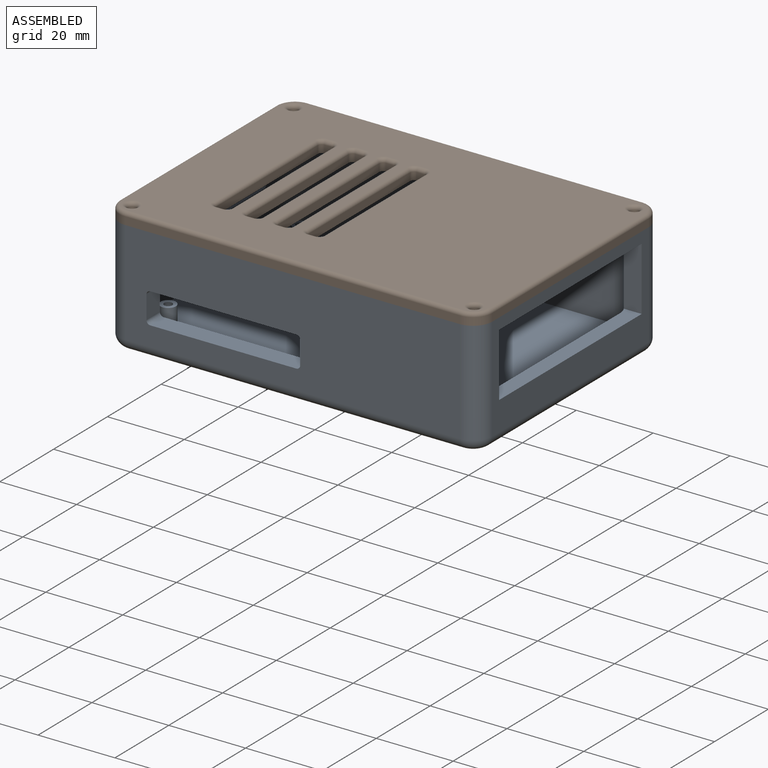
[diagram: assembled view]
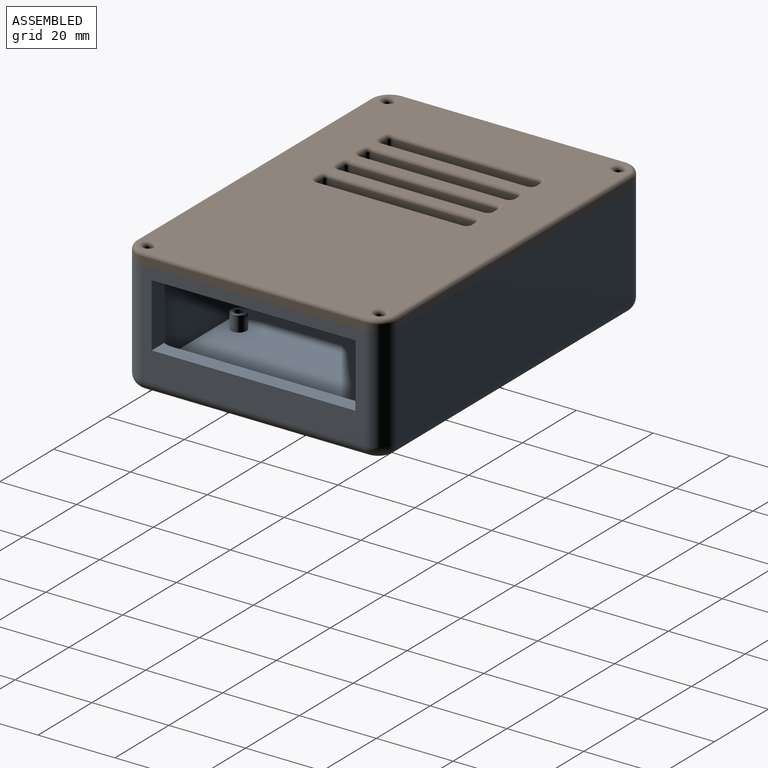
[diagram: assembled view, second angle]
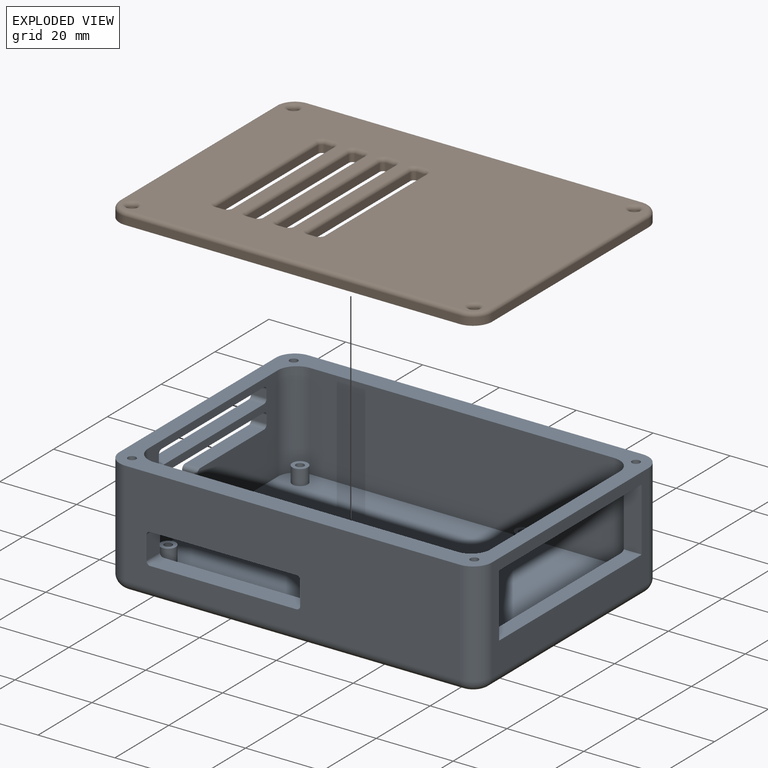
[diagram: exploded view]
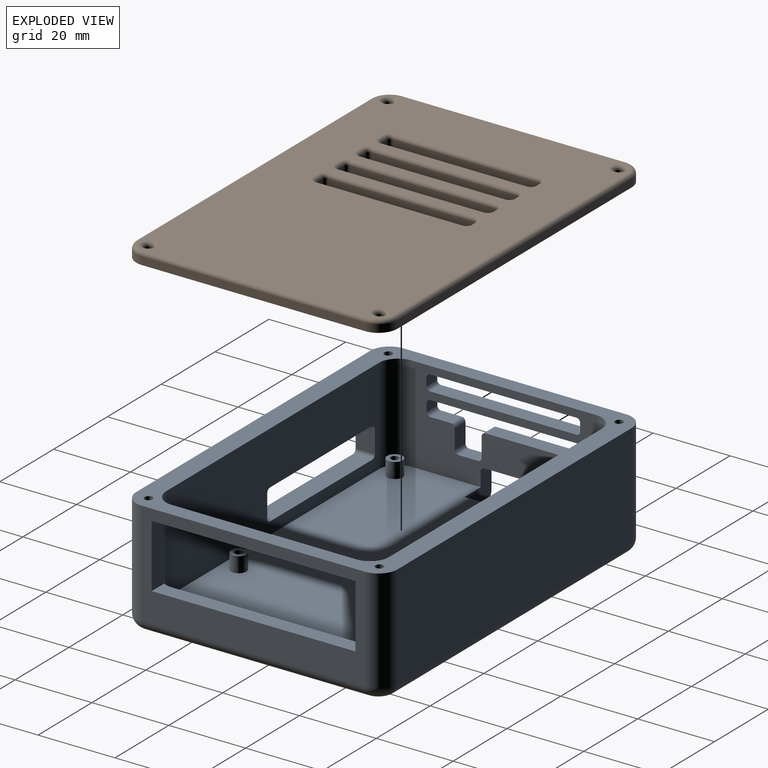
[diagram: exploded view, second angle]
FCSTD DOCUMENT  (FreeCAD 1.0R39109 (Git))
Label: Pi-Case
License: All rights reserved
LicenseURL: https://en.wikipedia.org/wiki/All_rights_reserved
objects: Sketcher::SketchObject×13, PartDesign::Pocket×5, PartDesign::Pad×4, PartDesign::Hole×3, PartDesign::Fillet×2, PartDesign::Body×2, Assembly::JointGroup×1, Assembly::AssemblyObject×1
note: 70 computed .brp shape members not serialized (recipe doc carries the construction recipe); baked Part::Feature solids carry a one-line shape summary decoded from their .brp

FEATURE [Assembly::JointGroup] Joints
FEATURE [Sketcher::SketchObject] Sketch
  ArcFitTolerance = 1e-06
  AttachmentSupport = -> [XY_Plane002]
  FullyConstrained = true
  MakeInternals = false
  MapMode = 5
  sketch-geometry (10):
    g0: LineSegment StartX=-43.5 StartY=-34 StartZ=0 EndX=43.5 EndY=-34 EndZ=0
    g1: LineSegment StartX=48.5 StartY=-29 StartZ=0 EndX=48.5 EndY=29 EndZ=0
    g2: LineSegment StartX=43.5 StartY=34 StartZ=0 EndX=-43.5 EndY=34 EndZ=0
    g3: LineSegment StartX=-48.5 StartY=29 StartZ=0 EndX=-48.5 EndY=-29 EndZ=0
    g4: ArcOfCircle CenterX=-43.5 CenterY=-29 CenterZ=0 NormalX=0 NormalY=0 NormalZ=1 AngleXU=0 Radius=5 StartAngle=3.14159 EndAngle=4.71239
    g5: ArcOfCircle CenterX=43.5 CenterY=-29 CenterZ=0 NormalX=0 NormalY=0 NormalZ=1 AngleXU=0 Radius=5 StartAngle=4.71239 EndAngle=6.28319
    g6: ArcOfCircle CenterX=43.5 CenterY=29 CenterZ=0 NormalX=0 NormalY=0 NormalZ=1 AngleXU=0 Radius=5 StartAngle=4.3e-15 EndAngle=1.5708
    g7: ArcOfCircle CenterX=-43.5 CenterY=29 CenterZ=0 NormalX=0 NormalY=0 NormalZ=1 AngleXU=0 Radius=5 StartAngle=1.5708 EndAngle=3.14159
    g8: GeomPoint [constr] X=48.5 Y=34 Z=0
    g9: GeomPoint [constr] X=0 Y=0 Z=0
  constraints (22):
    c: Tangent(g0,g4) = -1.5708
    c: Tangent(g0,g5) = -1.5708
    c: Tangent(g1,g5) = -1.5708
    c: Tangent(g1,g6) = -1.5708
    c: Tangent(g2,g6) = -1.5708
    c: Tangent(g2,g7) = -1.5708
    c: Tangent(g3,g7) = -1.5708
    c: Tangent(g3,g4) = -1.5708
    c: Horizontal(g0)
    c: Horizontal(g2)
    c: Vertical(g1)
    c: Vertical(g3)
    c: Equal(g4,g5)
    c: Equal(g5,g6)
    c: Equal(g6,g7)
    c: Symmetric(g2,g0,g9)
    c: PointOnObject(g8,g1)
    c: PointOnObject(g8,g2)
    c: Distance(g1,g3) = 97
    c: Distance(g0,g2) = 68
    c: Radius(g5) = 5
    c: Coincident(g9,g-1)
FEATURE [PartDesign::Pad] Pad  label="Base"
  Direction = (0,0,1)
  Length = 5
  Length2 = 10
  Profile = -> Sketch
  ReferenceAxis = -> Sketch [N_Axis]
  Refine = true
  Suppressed = false
  Type = 0
FEATURE [PartDesign::Fillet] Fillet
  Base = -> Pad [Face9]
  BaseFeature = -> Pad
  Radius = 3
  Refine = true
  SupportTransform = false
  Suppressed = false
  UseAllEdges = false
FEATURE [Sketcher::SketchObject] Sketch001
  ArcFitTolerance = 1e-06
  AttachmentSupport = -> [Fillet]
  FullyConstrained = false
  MakeInternals = false
  MapMode = 5
  Placement = pos=(0,0,5) rot=(0,0,1;0rad)
  sketch-geometry (4):
    g0: Circle CenterX=18.9912 CenterY=24.5 CenterZ=0 NormalX=0 NormalY=0 NormalZ=1 AngleXU=0 Radius=2
    g1: Circle CenterX=18.9912 CenterY=-24.5 CenterZ=0 NormalX=0 NormalY=0 NormalZ=1 AngleXU=0 Radius=2
    g2: Circle CenterX=-39.0088 CenterY=-24.5 CenterZ=0 NormalX=0 NormalY=0 NormalZ=1 AngleXU=0 Radius=2
    g3: Circle CenterX=-39.0088 CenterY=24.5 CenterZ=0 NormalX=0 NormalY=0 NormalZ=1 AngleXU=0 Radius=2
  constraints (9):
    c: Diameter(g0) = 4
    c: Diameter(g1) = 4
    c: Diameter(g2) = 4
    c: Diameter(g3) = 4
    c: Symmetric(g3,g2,g-1)
    c: Symmetric(g1,g0,g-1)
    c: DistanceX(g3,g0) = 58
    c: DistanceY(g1,g0) = 49
    c: DistanceY(g2,g3) = 49
FEATURE [Sketcher::SketchObject] Sketch002
  ArcFitTolerance = 1e-06
  AttachmentSupport = -> [Fillet]
  FullyConstrained = true
  MakeInternals = false
  MapMode = 5
  Placement = pos=(0,0,5) rot=(0,0,1;0rad)
  sketch-geometry (20):
    g0: LineSegment StartX=-43.5 StartY=-34 StartZ=0 EndX=43.5 EndY=-34 EndZ=0
    g1: LineSegment StartX=48.5 StartY=-29 StartZ=0 EndX=48.5 EndY=29 EndZ=0
    g2: LineSegment StartX=43.5 StartY=34 StartZ=0 EndX=-43.5 EndY=34 EndZ=0
    g3: LineSegment StartX=-48.5 StartY=29 StartZ=0 EndX=-48.5 EndY=-29 EndZ=0
    g4: ArcOfCircle CenterX=-43.5 CenterY=-29 CenterZ=0 NormalX=0 NormalY=0 NormalZ=1 AngleXU=0 Radius=5 StartAngle=3.14159 EndAngle=4.71239
    g5: ArcOfCircle CenterX=43.5 CenterY=-29 CenterZ=0 NormalX=0 NormalY=0 NormalZ=1 AngleXU=0 Radius=5 StartAngle=4.71239 EndAngle=6.28319
    g6: ArcOfCircle CenterX=43.5 CenterY=29 CenterZ=0 NormalX=0 NormalY=0 NormalZ=1 AngleXU=0 Radius=5 StartAngle=0 EndAngle=1.5708
    g7: ArcOfCircle CenterX=-43.5 CenterY=29 CenterZ=0 NormalX=0 NormalY=0 NormalZ=1 AngleXU=0 Radius=5 StartAngle=1.5708 EndAngle=3.14159
    g8: GeomPoint [constr] X=48.5 Y=34 Z=0
    g9: GeomPoint [constr] X=0 Y=0 Z=0
    g10: LineSegment StartX=-39.5 StartY=-29 StartZ=0 EndX=39.5 EndY=-29 EndZ=0
    g11: LineSegment StartX=44.5 StartY=-24 StartZ=0 EndX=44.5 EndY=24 EndZ=0
    g12: LineSegment StartX=39.5 StartY=29 StartZ=0 EndX=-39.5 EndY=29 EndZ=0
    g13: LineSegment StartX=-44.5 StartY=24 StartZ=0 EndX=-44.5 EndY=-24 EndZ=0
    g14: ArcOfCircle CenterX=-39.5 CenterY=-24 CenterZ=0 NormalX=0 NormalY=0 NormalZ=1 AngleXU=0 Radius=5 StartAngle=3.14159 EndAngle=4.71239
    g15: ArcOfCircle CenterX=39.5 CenterY=-24 CenterZ=0 NormalX=0 NormalY=0 NormalZ=1 AngleXU=0 Radius=5 StartAngle=4.71239 EndAngle=6.28319
    g16: ArcOfCircle CenterX=39.5 CenterY=24 CenterZ=0 NormalX=0 NormalY=0 NormalZ=1 AngleXU=0 Radius=5 StartAngle=-9e-16 EndAngle=1.5708
    g17: ArcOfCircle CenterX=-39.5 CenterY=24 CenterZ=0 NormalX=0 NormalY=0 NormalZ=1 AngleXU=0 Radius=5 StartAngle=1.5708 EndAngle=3.14159
    g18: GeomPoint [constr] X=44.5 Y=29 Z=0
    g19: GeomPoint [constr] X=0 Y=0 Z=0
  constraints (44):
    c: Tangent(g0,g4) = -1.5708
    c: Tangent(g0,g5) = -1.5708
    c: Tangent(g1,g5) = -1.5708
    c: Tangent(g1,g6) = -1.5708
    c: Tangent(g2,g6) = -1.5708
    c: Tangent(g2,g7) = -1.5708
    c: Tangent(g3,g7) = -1.5708
    c: Tangent(g3,g4) = -1.5708
    c: Horizontal(g0)
    c: Horizontal(g2)
    c: Vertical(g1)
    c: Vertical(g3)
    c: Equal(g4,g5)
    c: Equal(g5,g6)
    c: Equal(g6,g7)
    c: Symmetric(g2,g0,g9)
    c: PointOnObject(g8,g1)
    c: PointOnObject(g8,g2)
    c: Distance(g1,g3) = 97
    c: Distance(g0,g2) = 68
    c: Radius(g5) = 5
    c: Coincident(g9,g-1)
    c: Tangent(g10,g14) = -1.5708
    c: Tangent(g10,g15) = -1.5708
    c: Tangent(g11,g15) = -1.5708
    c: Tangent(g11,g16) = -1.5708
    c: Tangent(g12,g16) = -1.5708
    c: Tangent(g12,g17) = -1.5708
    c: Tangent(g13,g17) = -1.5708
    c: Tangent(g13,g14) = -1.5708
    c: Horizontal(g10)
    c: Horizontal(g12)
    c: Vertical(g11)
    c: Vertical(g13)
    c: Equal(g14,g15)
    c: Equal(g15,g16)
    c: Equal(g16,g17)
    c: Symmetric(g12,g10,g19)
    c: PointOnObject(g18,g11)
    c: PointOnObject(g18,g12)
    c: Distance(g11,g13) = 89
    c: Distance(g10,g12) = 58
    c: Radius(g15) = 5
    c: Coincident(g19,g9)
FEATURE [PartDesign::Pad] Pad001  label="Walls"
  BaseFeature = -> Fillet
  Direction = (0,0,1)
  Length = 25
  Length2 = 10
  Profile = -> Sketch002
  ReferenceAxis = -> Sketch002 [N_Axis]
  Refine = true
  Suppressed = false
  Type = 0
FEATURE [Sketcher::SketchObject] Sketch003
  ArcFitTolerance = 1e-06
  AttachmentSupport = -> [Pad001]
  FullyConstrained = true
  MakeInternals = false
  MapMode = 5
  Placement = pos=(48.5,0,0) rot=(0.57735,0.57735,0.57735;2.0944rad)
  sketch-geometry (5):
    g0: LineSegment StartX=-26.5 StartY=10.6 StartZ=0 EndX=26.5 EndY=10.6 EndZ=0
    g1: LineSegment StartX=26.5 StartY=10.6 StartZ=0 EndX=26.5 EndY=27.1 EndZ=0
    g2: LineSegment StartX=26.5 StartY=27.1 StartZ=0 EndX=-26.5 EndY=27.1 EndZ=0
    g3: LineSegment StartX=-26.5 StartY=27.1 StartZ=0 EndX=-26.5 EndY=10.6 EndZ=0
    g4: GeomPoint [constr] X=0 Y=18.85 Z=0
  constraints (13):
    c: Coincident(g0,g1)
    c: Coincident(g1,g2)
    c: Coincident(g2,g3)
    c: Coincident(g3,g0)
    c: Horizontal(g0)
    c: Horizontal(g2)
    c: Vertical(g1)
    c: Vertical(g3)
    c: Symmetric(g2,g0,g4)
    c: Distance(g1,g3) = 53
    c: Distance(g0,g2) = 16.5
    c: PointOnObject(g4,g-2)
    c: DistanceY(g-1,g4) = 18.85
FEATURE [PartDesign::Pocket] Pocket  label="Back Ports"
  BaseFeature = -> Pad001
  Direction = (-1,0,0)
  Length = 5
  Length2 = 5
  Profile = -> Sketch003
  ReferenceAxis = -> Sketch003 [N_Axis]
  Refine = true
  Suppressed = false
  Type = 0
FEATURE [PartDesign::Pad] Pad002  label="Stilts"
  BaseFeature = -> Pocket
  Direction = (0,0,1)
  Length = 4
  Length2 = 10
  Profile = -> Sketch001
  ReferenceAxis = -> Sketch001 [N_Axis]
  Refine = true
  Suppressed = false
  Type = 0
FEATURE [Sketcher::SketchObject] Sketch004
  ArcFitTolerance = 1e-06
  AttachmentSupport = -> [Pad002]
  ExternalGeometry = -> [Pad002]
  FullyConstrained = true
  MakeInternals = false
  MapMode = 5
  Placement = pos=(0,0,9) rot=(0,0,1;0rad)
  sketch-geometry (4):
    g0: Circle CenterX=-39.0088 CenterY=24.5 CenterZ=0 NormalX=0 NormalY=0 NormalZ=1 AngleXU=0 Radius=0.75
    g1: Circle CenterX=18.9912 CenterY=24.5 CenterZ=0 NormalX=0 NormalY=0 NormalZ=1 AngleXU=0 Radius=0.75
    g2: Circle CenterX=18.9912 CenterY=-24.5 CenterZ=0 NormalX=0 NormalY=0 NormalZ=1 AngleXU=0 Radius=0.75
    g3: Circle CenterX=-39.0088 CenterY=-24.5 CenterZ=0 NormalX=0 NormalY=0 NormalZ=1 AngleXU=0 Radius=0.75
  constraints (8):
    c: Diameter(g0) = 1.5
    c: Coincident(g0,g-3)
    c: Diameter(g1) = 1.5
    c: Coincident(g1,g-4)
    c: Diameter(g2) = 1.5
    c: Coincident(g2,g-5)
    c: Diameter(g3) = 1.5
    c: Coincident(g3,g-6)
FEATURE [PartDesign::Hole] Hole  label="Board Holes"
  BaseFeature = -> Pad002
  CustomThreadClearance = 0
  Depth = 6
  DepthType = 0
  Diameter = 2.1
  DrillForDepth = false
  DrillPoint = 1
  DrillPointAngle = 118
  HoleCutCountersinkAngle = 90
  HoleCutCustomValues = false
  HoleCutDepth = 0
  HoleCutDiameter = 6.1
  HoleCutType = 0
  ModelThread = false
  Profile = -> Sketch004
  Refine = true
  Suppressed = false
  Tapered = false
  TaperedAngle = 90
  ThreadClass = 0
  ThreadDepth = 6
  ThreadDepthType = 0
  ThreadDirection = 0
  ThreadFit = 0
  ThreadSize = 0
  ThreadType = 0
  Threaded = false
  UseCustomThreadClearance = false
FEATURE [Sketcher::SketchObject] Sketch005
  ArcFitTolerance = 1e-06
  AttachmentSupport = -> [Hole]
  ExternalGeometry = -> [Hole]
  FullyConstrained = false
  MakeInternals = false
  MapMode = 5
  Placement = pos=(0,0,30) rot=(0,0,1;0rad)
  sketch-geometry (4):
    g0: Circle CenterX=-44.5355 CenterY=-30.0355 CenterZ=0 NormalX=0 NormalY=0 NormalZ=1 AngleXU=0 Radius=1.05
    g1: Circle CenterX=44.5345 CenterY=-30.0345 CenterZ=0 NormalX=0 NormalY=0 NormalZ=1 AngleXU=0 Radius=1.05
    g2: Circle CenterX=44.5355 CenterY=30.0355 CenterZ=0 NormalX=0 NormalY=0 NormalZ=1 AngleXU=0 Radius=1.05
    g3: Circle CenterX=-44.5355 CenterY=30.0355 CenterZ=0 NormalX=0 NormalY=0 NormalZ=1 AngleXU=0 Radius=1.05
  constraints (6):
    c: Diameter(g0) = 2.1
    c: Diameter(g1) = 2.1
    c: Diameter(g2) = 2.1
    c: Diameter(g3) = 2.1
    c: DistanceX(g0,g1) = 89.07
    c: DistanceY(g1,g2) = 60.07
FEATURE [Sketcher::SketchObject] Sketch006
  ArcFitTolerance = 1e-06
  AttachmentSupport = -> [Hole]
  FullyConstrained = false
  MakeInternals = false
  MapMode = 5
  Placement = pos=(-48.5,0,0) rot=(0.57735,-0.57735,-0.57735;2.0944rad)
  sketch-geometry (11):
    g0: LineSegment StartX=-5 StartY=-0.312917 StartZ=0 EndX=5 EndY=-0.312917 EndZ=0
    g1: LineSegment StartX=6 StartY=0.687083 StartZ=0 EndX=6 EndY=8.68708 EndZ=0
    g2: LineSegment StartX=5 StartY=9.68708 StartZ=0 EndX=-5 EndY=9.68708 EndZ=0
    g3: LineSegment StartX=-6 StartY=8.68708 StartZ=0 EndX=-6 EndY=0.687083 EndZ=0
    g4: ArcOfCircle CenterX=-5 CenterY=0.687083 CenterZ=0 NormalX=0 NormalY=0 NormalZ=1 AngleXU=0 Radius=1 StartAngle=3.14159 EndAngle=4.71239
    g5: ArcOfCircle CenterX=5 CenterY=0.687083 CenterZ=0 NormalX=0 NormalY=0 NormalZ=1 AngleXU=0 Radius=1 StartAngle=4.71239 EndAngle=6.28319
    g6: ArcOfCircle CenterX=5 CenterY=8.68708 CenterZ=0 NormalX=0 NormalY=0 NormalZ=1 AngleXU=0 Radius=1 StartAngle=1e-16 EndAngle=1.5708
    g7: ArcOfCircle CenterX=-5 CenterY=8.68708 CenterZ=0 NormalX=0 NormalY=0 NormalZ=1 AngleXU=0 Radius=1 StartAngle=1.5708 EndAngle=3.14159
    g8: GeomPoint [constr] X=6 Y=9.68708 Z=0
    g9: GeomPoint [constr] X=0 Y=5.00565 Z=0
    g10: GeomPoint [constr] X=5 Y=9.68708 Z=0
  constraints (22):
    c: Tangent(g0,g4) = -1.5708
    c: Tangent(g0,g5) = -1.5708
    c: Tangent(g1,g5) = -1.5708
    c: Tangent(g1,g6) = -1.5708
    c: Tangent(g2,g6) = -1.5708
    c: Tangent(g2,g7) = -1.5708
    c: Tangent(g3,g7) = -1.5708
    c: Tangent(g3,g4) = -1.5708
    c: Horizontal(g0)
    c: Horizontal(g2)
    c: Vertical(g1)
    c: Vertical(g3)
    c: Equal(g5,g6)
    c: Equal(g6,g7)
    c: PointOnObject(g8,g1)
    c: PointOnObject(g8,g2)
    c: Distance(g1,g3) = 12
    c: Distance(g0,g2) = 10
    c: Radius(g5) = 1
    c: PointOnObject(g9,g-2)
    c: Symmetric(g5,g4,g-2)
    c: Coincident(g10,g2)
FEATURE [PartDesign::Pocket] Pocket001  label="SD Card Pocket"
  BaseFeature = -> Hole
  Direction = (1,0,0)
  Length = 10
  Length2 = 5
  Profile = -> Sketch006
  ReferenceAxis = -> Sketch006 [N_Axis]
  Refine = true
  Suppressed = false
  Type = 0
FEATURE [Sketcher::SketchObject] Sketch007
  ArcFitTolerance = 1e-06
  AttachmentSupport = -> [Pocket001]
  ExternalGeometry = -> [Pocket001]
  FullyConstrained = false
  MakeInternals = false
  MapMode = 5
  Placement = pos=(-48.5,0,0) rot=(0.57735,-0.57735,-0.57735;2.0944rad)
  sketch-geometry (37):
    g0: LineSegment StartX=20.0788 StartY=18.9948 StartZ=0 EndX=20.0788 EndY=21 EndZ=0
    g1: LineSegment StartX=19.0788 StartY=22 StartZ=0 EndX=-18.9212 EndY=22 EndZ=0
    g2: LineSegment StartX=-19.9212 StartY=21 StartZ=0 EndX=-19.9212 EndY=18.9912 EndZ=0
    g3: ArcOfCircle CenterX=-18.9212 CenterY=18.9912 CenterZ=0 NormalX=0 NormalY=0 NormalZ=1 AngleXU=0 Radius=1 StartAngle=3.14159 EndAngle=4.55954
    g4: ArcOfCircle CenterX=19.0788 CenterY=18.9948 CenterZ=0 NormalX=0 NormalY=0 NormalZ=1 AngleXU=0 Radius=1 StartAngle=4.7111 EndAngle=6.28319
    g5: ArcOfCircle CenterX=19.0788 CenterY=21 CenterZ=0 NormalX=0 NormalY=0 NormalZ=1 AngleXU=0 Radius=1 StartAngle=1.3e-15 EndAngle=1.5708
    g6: ArcOfCircle CenterX=-18.9212 CenterY=21 CenterZ=0 NormalX=0 NormalY=0 NormalZ=1 AngleXU=0 Radius=1 StartAngle=1.5708 EndAngle=3.14159
    g7: GeomPoint [constr] X=20.0788 Y=22 Z=0
    g8: GeomPoint [constr] X=0.00265967 Y=20.0014 Z=0
    g9: LineSegment StartX=-18.8903 StartY=24 StartZ=0 EndX=19.1097 EndY=24 EndZ=0
    g10: LineSegment StartX=20.1097 StartY=25 StartZ=0 EndX=20.1097 EndY=27 EndZ=0
    g11: LineSegment StartX=19.1097 StartY=28 StartZ=0 EndX=-18.8903 EndY=28 EndZ=0
    g12: LineSegment StartX=-19.8903 StartY=27 StartZ=0 EndX=-19.8903 EndY=25 EndZ=0
    g13: ArcOfCircle CenterX=-18.8903 CenterY=25 CenterZ=0 NormalX=0 NormalY=0 NormalZ=1 AngleXU=0 Radius=1 StartAngle=3.14159 EndAngle=4.71239
    g14: ArcOfCircle CenterX=19.1097 CenterY=25 CenterZ=0 NormalX=0 NormalY=0 NormalZ=1 AngleXU=0 Radius=1 StartAngle=4.71239 EndAngle=6.28319
    g15: ArcOfCircle CenterX=19.1097 CenterY=27 CenterZ=0 NormalX=0 NormalY=0 NormalZ=1 AngleXU=0 Radius=1 StartAngle=1.1e-15 EndAngle=1.5708
    g16: ArcOfCircle CenterX=-18.8903 CenterY=27 CenterZ=0 NormalX=0 NormalY=0 NormalZ=1 AngleXU=0 Radius=1 StartAngle=1.5708 EndAngle=3.14159
    g17: GeomPoint [constr] X=20.1097 Y=28 Z=0
    g18: GeomPoint [constr] X=0.109708 Y=26 Z=0
    g19: GeomPoint X=24.15 Y=9 Z=0
    g20: LineSegment StartX=19.0775 StartY=17.9948 StartZ=0 EndX=13.7513 EndY=18.0016 EndZ=0
    g21: LineSegment StartX=12.75 StartY=17.0016 StartZ=0 EndX=12.75 EndY=12.0029 EndZ=0
    g22: LineSegment StartX=11.75 StartY=11.0029 StartZ=0 EndX=6.75 EndY=11.0029 EndZ=0
    g23: LineSegment StartX=5.75 StartY=12.0029 StartZ=0 EndX=5.75 EndY=17.0029 EndZ=0
    g24: LineSegment StartX=4.75 StartY=18.0029 StartZ=0 EndX=-19.0735 EndY=18.0029 EndZ=0
    g25: GeomPoint X=9.25 Y=11.0029 Z=0
    g26: GeomPoint X=9.25 Y=18.0029 Z=0
    g27: ArcOfCircle CenterX=6.75 CenterY=12.0029 CenterZ=0 NormalX=0 NormalY=0 NormalZ=1 AngleXU=0 Radius=1 StartAngle=3.14159 EndAngle=4.71239
    g28: GeomPoint [constr] X=5.75 Y=11.0029 Z=0
    g29: ArcOfCircle CenterX=11.75 CenterY=12.0029 CenterZ=0 NormalX=0 NormalY=0 NormalZ=1 AngleXU=0 Radius=1 StartAngle=4.71239 EndAngle=6.28319
    g30: GeomPoint [constr] X=12.75 Y=11.0029 Z=0
    g31: GeomPoint X=9.25 Y=9 Z=0
    g32: ArcOfCircle CenterX=13.75 CenterY=17.0016 CenterZ=0 NormalX=0 NormalY=0 NormalZ=1 AngleXU=0 Radius=1 StartAngle=1.56951 EndAngle=3.14159
    g33: GeomPoint [constr] X=12.75 Y=18.0029 Z=0
    g34: ArcOfCircle CenterX=4.75 CenterY=17.0029 CenterZ=0 NormalX=0 NormalY=0 NormalZ=1 AngleXU=0 Radius=1 StartAngle=5e-16 EndAngle=1.5708
    g35: GeomPoint [constr] X=5.75 Y=18.0029 Z=0
    g36: GeomPoint X=0 Y=30 Z=0
  constraints (78):
    c: Tangent(g0,g4) = -1.5708
    c: Tangent(g0,g5) = -1.5708
    c: Tangent(g1,g5) = -1.5708
    c: Tangent(g1,g6) = -1.5708
    c: Tangent(g2,g6) = -1.5708
    c: Tangent(g2,g3) = -1.5708
    c: Horizontal(g1)
    c: Vertical(g0)
    c: Vertical(g2)
    c: Equal(g3,g4)
    c: Equal(g4,g5)
    c: Equal(g5,g6)
    c: Symmetric(g1,g3,g8)
    c: PointOnObject(g7,g0)
    c: PointOnObject(g7,g1)
    c: Distance(g0,g2) = 40
    c: Distance(g3,g1) = 4
    c: Radius(g4) = 1
    c: Tangent(g9,g13) = -1.5708
    c: Tangent(g9,g14) = -1.5708
    c: Tangent(g10,g14) = -1.5708
    c: Tangent(g10,g15) = -1.5708
    c: Tangent(g11,g15) = -1.5708
    c: Tangent(g11,g16) = -1.5708
    c: Tangent(g12,g16) = -1.5708
    c: Tangent(g12,g13) = -1.5708
    c: Horizontal(g9)
    c: Horizontal(g11)
    c: Vertical(g10)
    c: Vertical(g12)
    c: Equal(g13,g14)
    c: Equal(g14,g15)
    c: Equal(g15,g16)
    c: Symmetric(g11,g9,g18)
    c: PointOnObject(g17,g10)
    c: PointOnObject(g17,g11)
    c: Distance(g10,g12) = 40
    c: Distance(g9,g11) = 4
    c: Radius(g14) = 1
    c: Tangent(g4,g20) = 1.5708
    c: Vertical(g21)
    c: Horizontal(g22)
    c: Vertical(g23)
    c: Coincident(g24,g3)
    c: Horizontal(g24)
    c: Symmetric(g28,g30,g25)
    c: Symmetric(g35,g33,g26)
    c: DistanceY(g35,g26) = 0
    c: DistanceX(g28,g30) = 7
    c: DistanceY(g28,g35) = 7
    c: PointOnObject(g28,g23)
    c: PointOnObject(g28,g22)
    c: Tangent(g23,g27) = 1.5708
    c: Tangent(g22,g27) = 1.5708
    c: PointOnObject(g30,g22)
    c: PointOnObject(g30,g21)
    c: Tangent(g22,g29) = 1.5708
    c: Tangent(g21,g29) = 1.5708
    c: Radius(g27) = 1
    c: DistanceX(g31,g25) = 0
    c: DistanceY(g31,g19) = 0
    c: DistanceY(g19,g-6) = 0
    c: Radius(g29) = 1
    c: DistanceX(g-6,g19) = 0.7
    c: PointOnObject(g33,g21)
    c: PointOnObject(g33,g20)
    c: Tangent(g21,g32) = -1.5708
    c: Tangent(g20,g32) = -1.5708
    c: PointOnObject(g35,g23)
    c: PointOnObject(g35,g24)
    c: Tangent(g23,g34) = -1.5708
    c: Tangent(g24,g34) = -1.5708
    c: Radius(g32) = 1
    c: Radius(g34) = 1
    c: DistanceX(g31,g19) = 14.9
    c: Symmetric(g-8,g-8,g36)
    c: DistanceY(g11,g36) = 2
    c: DistanceY(g1,g9) = 2
FEATURE [Sketcher::SketchObject] Sketch010
  ArcFitTolerance = 1e-06
  AttachmentSupport = -> [XY_Plane004]
  FullyConstrained = false
  MakeInternals = false
  MapMode = 5
  sketch-geometry (11):
    g0: LineSegment StartX=-43.5 StartY=-34 StartZ=0 EndX=43.5 EndY=-34 EndZ=0
    g1: LineSegment StartX=48.5 StartY=-29 StartZ=0 EndX=48.5 EndY=29 EndZ=0
    g2: LineSegment StartX=43.5 StartY=34 StartZ=0 EndX=-43.5 EndY=34 EndZ=0
    g3: LineSegment StartX=-48.5 StartY=29 StartZ=0 EndX=-48.5 EndY=-29 EndZ=0
    g4: ArcOfCircle CenterX=-43.5 CenterY=-29 CenterZ=0 NormalX=0 NormalY=0 NormalZ=1 AngleXU=0 Radius=5 StartAngle=3.14159 EndAngle=4.71239
    g5: ArcOfCircle CenterX=43.5 CenterY=-29 CenterZ=0 NormalX=0 NormalY=0 NormalZ=1 AngleXU=0 Radius=5 StartAngle=4.71239 EndAngle=6.28319
    g6: ArcOfCircle CenterX=43.5 CenterY=29 CenterZ=0 NormalX=0 NormalY=0 NormalZ=1 AngleXU=0 Radius=5 StartAngle=4.5e-15 EndAngle=1.5708
    g7: ArcOfCircle CenterX=-43.5 CenterY=29 CenterZ=0 NormalX=0 NormalY=0 NormalZ=1 AngleXU=0 Radius=5 StartAngle=1.5708 EndAngle=3.14159
    g8: GeomPoint [constr] X=48.5 Y=34 Z=0
    g9: GeomPoint [constr] X=0 Y=0 Z=0
    g10: GeomPoint X=-43.8516 Y=-29.3405 Z=0
  constraints (22):
    c: Tangent(g0,g4) = -1.5708
    c: Tangent(g0,g5) = -1.5708
    c: Tangent(g1,g5) = -1.5708
    c: Tangent(g1,g6) = -1.5708
    c: Tangent(g2,g6) = -1.5708
    c: Tangent(g2,g7) = -1.5708
    c: Tangent(g3,g7) = -1.5708
    c: Tangent(g3,g4) = -1.5708
    c: Horizontal(g0)
    c: Horizontal(g2)
    c: Vertical(g1)
    c: Vertical(g3)
    c: Equal(g4,g5)
    c: Equal(g5,g6)
    c: Equal(g6,g7)
    c: Symmetric(g2,g0,g9)
    c: PointOnObject(g8,g1)
    c: PointOnObject(g8,g2)
    c: Distance(g1,g3) = 97
    c: Distance(g0,g2) = 68
    c: Radius(g5) = 5
    c: Coincident(g9,g-1)
FEATURE [PartDesign::Pad] Pad003
  Direction = (0,0,1)
  Length = 3
  Length2 = 10
  Profile = -> Sketch010
  ReferenceAxis = -> Sketch010 [N_Axis]
  Refine = true
  Suppressed = false
  Type = 0
FEATURE [Sketcher::SketchObject] Sketch012
  ArcFitTolerance = 1e-06
  FullyConstrained = true
  MakeInternals = false
  MapMode = 5
  Placement = pos=(0,0,3) rot=(0,0,1;0rad)
  sketch-geometry (49):
    g0: GeomPoint X=-44.5 Y=0 Z=0
    g1: LineSegment StartX=-29.5 StartY=-20 StartZ=0 EndX=-27.5 EndY=-20 EndZ=0
    g2: LineSegment StartX=-26.5 StartY=-19 StartZ=0 EndX=-26.5 EndY=19 EndZ=0
    g3: LineSegment StartX=-27.5 StartY=20 StartZ=0 EndX=-29.5 EndY=20 EndZ=0
    g4: LineSegment StartX=-30.5 StartY=19 StartZ=0 EndX=-30.5 EndY=-19 EndZ=0
    g5: ArcOfCircle CenterX=-29.5 CenterY=-19 CenterZ=0 NormalX=0 NormalY=0 NormalZ=1 AngleXU=0 Radius=1 StartAngle=3.14159 EndAngle=4.71239
    g6: ArcOfCircle CenterX=-27.5 CenterY=-19 CenterZ=0 NormalX=0 NormalY=0 NormalZ=1 AngleXU=0 Radius=1 StartAngle=4.71239 EndAngle=6.28319
    g7: ArcOfCircle CenterX=-27.5 CenterY=19 CenterZ=0 NormalX=0 NormalY=0 NormalZ=1 AngleXU=0 Radius=1 StartAngle=4e-16 EndAngle=1.5708
    g8: ArcOfCircle CenterX=-29.5 CenterY=19 CenterZ=0 NormalX=0 NormalY=0 NormalZ=1 AngleXU=0 Radius=1 StartAngle=1.5708 EndAngle=3.14159
    g9: GeomPoint [constr] X=-26.5 Y=20 Z=0
    g10: GeomPoint [constr] X=-28.5 Y=0 Z=0
    g11: GeomPoint X=-30.5 Y=6e-16 Z=0
    g12: LineSegment StartX=-21.5 StartY=-20 StartZ=0 EndX=-19.5 EndY=-20 EndZ=0
    g13: LineSegment StartX=-18.5 StartY=-19 StartZ=0 EndX=-18.5 EndY=19 EndZ=0
    g14: LineSegment StartX=-19.5 StartY=20 StartZ=0 EndX=-21.5 EndY=20 EndZ=0
    g15: LineSegment StartX=-22.5 StartY=19 StartZ=0 EndX=-22.5 EndY=-19 EndZ=0
    g16: ArcOfCircle CenterX=-21.5 CenterY=-19 CenterZ=0 NormalX=0 NormalY=0 NormalZ=1 AngleXU=0 Radius=1 StartAngle=3.14159 EndAngle=4.71239
    g17: ArcOfCircle CenterX=-19.5 CenterY=-19 CenterZ=0 NormalX=0 NormalY=0 NormalZ=1 AngleXU=0 Radius=1 StartAngle=4.71239 EndAngle=6.28319
    g18: ArcOfCircle CenterX=-19.5 CenterY=19 CenterZ=0 NormalX=0 NormalY=0 NormalZ=1 AngleXU=0 Radius=1 StartAngle=-9e-16 EndAngle=1.5708
    g19: ArcOfCircle CenterX=-21.5 CenterY=19 CenterZ=0 NormalX=0 NormalY=0 NormalZ=1 AngleXU=0 Radius=1 StartAngle=1.5708 EndAngle=3.14159
    g20: GeomPoint [constr] X=-18.5 Y=20 Z=0
    g21: GeomPoint [constr] X=-20.5 Y=0 Z=0
    g22: LineSegment StartX=-13.5 StartY=-20 StartZ=0 EndX=-11.5 EndY=-20 EndZ=0
    g23: LineSegment StartX=-10.5 StartY=-19 StartZ=0 EndX=-10.5 EndY=19 EndZ=0
    g24: LineSegment StartX=-11.5 StartY=20 StartZ=0 EndX=-13.5 EndY=20 EndZ=0
    g25: LineSegment StartX=-14.5 StartY=19 StartZ=0 EndX=-14.5 EndY=-19 EndZ=0
    g26: ArcOfCircle CenterX=-13.5 CenterY=-19 CenterZ=0 NormalX=0 NormalY=0 NormalZ=1 AngleXU=0 Radius=1 StartAngle=3.14159 EndAngle=4.71239
    g27: ArcOfCircle CenterX=-11.5 CenterY=-19 CenterZ=0 NormalX=0 NormalY=0 NormalZ=1 AngleXU=0 Radius=1 StartAngle=4.71239 EndAngle=6.28319
    g28: ArcOfCircle CenterX=-11.5 CenterY=19 CenterZ=0 NormalX=0 NormalY=0 NormalZ=1 AngleXU=0 Radius=1 StartAngle=0 EndAngle=1.5708
    g29: ArcOfCircle CenterX=-13.5 CenterY=19 CenterZ=0 NormalX=0 NormalY=0 NormalZ=1 AngleXU=0 Radius=1 StartAngle=1.5708 EndAngle=3.14159
    g30: GeomPoint [constr] X=-10.5 Y=20 Z=0
    g31: GeomPoint [constr] X=-12.5 Y=0 Z=0
    g32: GeomPoint X=-22.5 Y=3e-16 Z=0
    g33: GeomPoint X=-26.5 Y=1e-16 Z=0
    g34: GeomPoint X=-18.5 Y=5e-16 Z=0
    g35: GeomPoint X=-14.5 Y=-1e-16 Z=0
    g36: LineSegment StartX=-5.5 StartY=-20 StartZ=0 EndX=-3.5 EndY=-20 EndZ=0
    g37: LineSegment StartX=-2.5 StartY=-19 StartZ=0 EndX=-2.5 EndY=19 EndZ=0
    g38: LineSegment StartX=-3.5 StartY=20 StartZ=0 EndX=-5.5 EndY=20 EndZ=0
    g39: LineSegment StartX=-6.5 StartY=19 StartZ=0 EndX=-6.5 EndY=-19 EndZ=0
    g40: ArcOfCircle CenterX=-5.5 CenterY=-19 CenterZ=0 NormalX=0 NormalY=0 NormalZ=1 AngleXU=0 Radius=1 StartAngle=3.14159 EndAngle=4.71239
    g41: ArcOfCircle CenterX=-3.5 CenterY=-19 CenterZ=0 NormalX=0 NormalY=0 NormalZ=1 AngleXU=0 Radius=1 StartAngle=4.71239 EndAngle=6.28319
    g42: ArcOfCircle CenterX=-3.5 CenterY=19 CenterZ=0 NormalX=0 NormalY=0 NormalZ=1 AngleXU=0 Radius=1 StartAngle=0 EndAngle=1.5708
    g43: ArcOfCircle CenterX=-5.5 CenterY=19 CenterZ=0 NormalX=0 NormalY=0 NormalZ=1 AngleXU=0 Radius=1 StartAngle=1.5708 EndAngle=3.14159
    g44: GeomPoint [constr] X=-2.5 Y=20 Z=0
    g45: GeomPoint [constr] X=-4.5 Y=0 Z=0
    g46: GeomPoint X=-6.5 Y=-1.2e-15 Z=0
    g47: GeomPoint X=-10.5 Y=1.4e-15 Z=0
    g48: GeomPoint X=-2.5 Y=1.1e-15 Z=0
  constraints (101):
    c: Symmetric(g-3,g-3,g0)
    c: Tangent(g1,g5) = -1.5708
    c: Tangent(g1,g6) = -1.5708
    c: Tangent(g2,g6) = -1.5708
    c: Tangent(g2,g7) = -1.5708
    c: Tangent(g3,g7) = -1.5708
    c: Tangent(g3,g8) = -1.5708
    c: Tangent(g4,g8) = -1.5708
    c: Tangent(g4,g5) = -1.5708
    c: Horizontal(g1)
    c: Horizontal(g3)
    c: Vertical(g2)
    c: Vertical(g4)
    c: Equal(g5,g6)
    c: Equal(g6,g7)
    c: Equal(g7,g8)
    c: Symmetric(g3,g1,g10)
    c: PointOnObject(g9,g2)
    c: PointOnObject(g9,g3)
    c: Distance(g2,g4) = 4
    c: Distance(g1,g3) = 40
    c: Radius(g6) = 1
    c: PointOnObject(g10,g-1)
    c: Symmetric(g4,g4,g11)
    c: Tangent(g12,g16) = -1.5708
    c: Tangent(g12,g17) = -1.5708
    c: Tangent(g13,g17) = -1.5708
    c: Tangent(g13,g18) = -1.5708
    c: Tangent(g14,g18) = -1.5708
    c: Tangent(g14,g19) = -1.5708
    c: Tangent(g15,g19) = -1.5708
    c: Tangent(g15,g16) = -1.5708
    c: Horizontal(g12)
    c: Horizontal(g14)
    c: Vertical(g13)
    c: Vertical(g15)
    c: Equal(g16,g17)
    c: Equal(g17,g18)
    c: Equal(g18,g19)
    c: Symmetric(g14,g12,g21)
    c: PointOnObject(g20,g13)
    c: PointOnObject(g20,g14)
    c: Distance(g13,g15) = 4
    c: Distance(g12,g14) = 40
    c: Radius(g17) = 1
    c: PointOnObject(g21,g-1)
    c: Tangent(g22,g26) = -1.5708
    c: Tangent(g22,g27) = -1.5708
    c: Tangent(g23,g27) = -1.5708
    c: Tangent(g23,g28) = -1.5708
    c: Tangent(g24,g28) = -1.5708
    c: Tangent(g24,g29) = -1.5708
    c: Tangent(g25,g29) = -1.5708
    c: Tangent(g25,g26) = -1.5708
    c: Horizontal(g22)
    c: Horizontal(g24)
    c: Vertical(g23)
    c: Vertical(g25)
    c: Equal(g26,g27)
    c: Equal(g27,g28)
    c: Equal(g28,g29)
    c: Symmetric(g24,g22,g31)
    c: PointOnObject(g30,g23)
    c: PointOnObject(g30,g24)
    c: Distance(g23,g25) = 4
    c: Distance(g22,g24) = 40
    c: Radius(g27) = 1
    c: PointOnObject(g31,g-1)
    c: Symmetric(g15,g15,g32)
    c: Symmetric(g2,g2,g33)
    c: DistanceX(g33,g32) = 4
    c: Symmetric(g13,g13,g34)
    c: Symmetric(g25,g25,g35)
    c: DistanceX(g34,g35) = 4
    c: Tangent(g36,g40) = -1.5708
    c: Tangent(g36,g41) = -1.5708
    c: Tangent(g37,g41) = -1.5708
    c: Tangent(g37,g42) = -1.5708
    c: Tangent(g38,g42) = -1.5708
    c: Tangent(g38,g43) = -1.5708
    c: Tangent(g39,g43) = -1.5708
    c: Tangent(g39,g40) = -1.5708
    c: Horizontal(g36)
    c: Horizontal(g38)
    c: Vertical(g37)
    c: Vertical(g39)
    c: Equal(g40,g41)
    c: Equal(g41,g42)
    c: Equal(g42,g43)
    c: Symmetric(g38,g36,g45)
    c: PointOnObject(g44,g37)
    c: PointOnObject(g44,g38)
    c: Distance(g37,g39) = 4
    c: Distance(g36,g38) = 40
    c: Radius(g41) = 1
    c: PointOnObject(g45,g-1)
    c: Symmetric(g39,g39,g46)
    c: Symmetric(g23,g23,g47)
    c: DistanceX(g47,g46) = 4
    c: Symmetric(g37,g37,g48)
    c: DistanceX(g0,g11) = 14
FEATURE [PartDesign::Pocket] Pocket004
  BaseFeature = -> Pad003
  Direction = (0,0,-1)
  Length = 5
  Length2 = 5
  Profile = -> Sketch012
  ReferenceAxis = -> Sketch012 [N_Axis]
  Refine = true
  Suppressed = false
  Type = 0
FEATURE [PartDesign::Pocket] Pocket002  label="Back Vent"
  BaseFeature = -> Pocket001
  Direction = (1,0,0)
  Length = 5
  Length2 = 5
  Profile = -> Sketch007
  ReferenceAxis = -> Sketch007 [N_Axis]
  Refine = true
  Suppressed = false
  Type = 0
FEATURE [Sketcher::SketchObject] Sketch009
  ArcFitTolerance = 1e-06
  AttachmentSupport = -> [Pocket002]
  ExternalGeometry = -> [Pocket002]
  FullyConstrained = true
  MakeInternals = false
  MapMode = 5
  Placement = pos=(0,-34,0) rot=(1,0,0;1.5708rad)
  sketch-geometry (10):
    g0: LineSegment StartX=-37.0088 StartY=8.15 StartZ=0 EndX=0.99123 EndY=8.15 EndZ=0
    g1: LineSegment StartX=1.99123 StartY=9.15 StartZ=0 EndX=1.99123 EndY=15.15 EndZ=0
    g2: LineSegment StartX=0.99123 StartY=16.15 StartZ=0 EndX=-37.0088 EndY=16.15 EndZ=0
    g3: LineSegment StartX=-38.0088 StartY=15.15 StartZ=0 EndX=-38.0088 EndY=9.15 EndZ=0
    g4: ArcOfCircle CenterX=-37.0088 CenterY=9.15 CenterZ=0 NormalX=0 NormalY=0 NormalZ=1 AngleXU=0 Radius=1 StartAngle=3.14159 EndAngle=4.71239
    g5: ArcOfCircle CenterX=0.99123 CenterY=9.15 CenterZ=0 NormalX=0 NormalY=0 NormalZ=1 AngleXU=0 Radius=1 StartAngle=4.71239 EndAngle=6.28319
    g6: ArcOfCircle CenterX=0.99123 CenterY=15.15 CenterZ=0 NormalX=0 NormalY=0 NormalZ=1 AngleXU=0 Radius=1 StartAngle=0 EndAngle=1.5708
    g7: ArcOfCircle CenterX=-37.0088 CenterY=15.15 CenterZ=0 NormalX=0 NormalY=0 NormalZ=1 AngleXU=0 Radius=1 StartAngle=1.5708 EndAngle=3.14159
    g8: GeomPoint [constr] X=1.99123 Y=16.15 Z=0
    g9: GeomPoint [constr] X=-18.0088 Y=12.15 Z=0
  constraints (23):
    c: Tangent(g0,g4) = -1.5708
    c: Tangent(g0,g5) = -1.5708
    c: Tangent(g1,g5) = -1.5708
    c: Tangent(g1,g6) = -1.5708
    c: Tangent(g2,g6) = -1.5708
    c: Tangent(g2,g7) = -1.5708
    c: Tangent(g3,g7) = -1.5708
    c: Tangent(g3,g4) = -1.5708
    c: Horizontal(g0)
    c: Horizontal(g2)
    c: Vertical(g1)
    c: Vertical(g3)
    c: Equal(g4,g5)
    c: Equal(g5,g6)
    c: Equal(g6,g7)
    c: Symmetric(g2,g0,g9)
    c: PointOnObject(g8,g1)
    c: PointOnObject(g8,g2)
    c: Distance(g1,g3) = 40
    c: Distance(g0,g2) = 8
    c: Radius(g5) = 1
    c: Distance(g9,g-4) = 7.15
    c: DistanceX(g-3,g3) = 1
FEATURE [PartDesign::Pocket] Pocket003  label="Side Ports"
  BaseFeature = -> Pocket002
  Direction = (0,1,-2e-16)
  Length = 5
  Length2 = 5
  Profile = -> Sketch009
  ReferenceAxis = -> Sketch009 [N_Axis]
  Refine = true
  Suppressed = false
  Type = 0
FEATURE [PartDesign::Hole] Hole001  label="Lid Holes"
  BaseFeature = -> Pocket003
  CustomThreadClearance = 0
  Depth = 6
  DepthType = 0
  Diameter = 2.1
  DrillForDepth = false
  DrillPoint = 1
  DrillPointAngle = 118
  HoleCutCountersinkAngle = 90
  HoleCutCustomValues = false
  HoleCutDepth = 0
  HoleCutDiameter = 6.1
  HoleCutType = 0
  ModelThread = false
  Profile = -> Sketch005
  Refine = true
  Suppressed = false
  Tapered = false
  TaperedAngle = 90
  ThreadClass = 0
  ThreadDepth = 6
  ThreadDepthType = 0
  ThreadDirection = 0
  ThreadFit = 0
  ThreadSize = 0
  ThreadType = 0
  Threaded = false
  UseCustomThreadClearance = false
FEATURE [Sketcher::SketchObject] Sketch013
  ArcFitTolerance = 1e-06
  AttachmentSupport = -> [Pocket002]
  ExternalGeometry = -> [Pocket002]
  FullyConstrained = true
  MakeInternals = false
  MapMode = 5
  Placement = pos=(0,0,9) rot=(0,0,1;0rad)
  sketch-geometry (1):
    g0: GeomPoint X=-39.0088 Y=-24.5 Z=0
  constraints (1):
    c: Coincident(g0,g-3)
FEATURE [PartDesign::Body] Body
  AllowCompound = false
  Group = -> [Sketch,Pad,Fillet,Sketch001,Sketch002,Pad001,Sketch003,Pocket,Pad002,Sketch004,Hole,Sketch005,Sketch006,Pocket001,Sketch007,Pocket002,Sketch009,Pocket003,Hole001,Sketch013]
  Origin = -> Origin002
  Tip = -> Hole001
FEATURE [Sketcher::SketchObject] Sketch014
  ArcFitTolerance = 1e-06
  AttachmentSupport = -> [Pocket004]
  ExternalGeometry = -> [Pocket004]
  FullyConstrained = false
  MakeInternals = false
  MapMode = 5
  Placement = pos=(0,0,0) rot=(1,0,0;3.14159rad)
  sketch-geometry (6):
    g0: GeomPoint [constr] X=43.5 Y=29 Z=0
    g1: GeomPoint [constr] X=0 Y=0 Z=0
    g2: Circle CenterX=-44.5356 CenterY=-30.0354 CenterZ=0 NormalX=0 NormalY=0 NormalZ=1 AngleXU=0 Radius=1.2
    g3: Circle CenterX=44.198 CenterY=-29.9761 CenterZ=0 NormalX=0 NormalY=0 NormalZ=1 AngleXU=0 Radius=1.2
    g4: Circle CenterX=44.5354 CenterY=30.0357 CenterZ=0 NormalX=0 NormalY=0 NormalZ=1 AngleXU=0 Radius=1.2
    g5: Circle CenterX=-44.5354 CenterY=30.0356 CenterZ=0 NormalX=0 NormalY=0 NormalZ=1 AngleXU=0 Radius=1.2
  constraints (6):
    c: Coincident(g1,g-1)
    c: Diameter(g2) = 2.4
    c: Diameter(g3) = 2.4
    c: PointOnObject(g-3,g3)
    c: Diameter(g4) = 2.4
    c: Diameter(g5) = 2.4
FEATURE [PartDesign::Hole] Hole002
  BaseFeature = -> Pocket004
  CustomThreadClearance = 0
  Depth = 25
  DepthType = 0
  Diameter = 2.4
  DrillForDepth = false
  DrillPoint = 1
  DrillPointAngle = 118
  HoleCutCountersinkAngle = 90
  HoleCutCustomValues = false
  HoleCutDepth = 0
  HoleCutDiameter = 6.1
  HoleCutType = 0
  ModelThread = false
  Profile = -> Sketch014
  Refine = true
  Suppressed = false
  Tapered = false
  TaperedAngle = 90
  ThreadClass = 0
  ThreadDepth = 25
  ThreadDepthType = 0
  ThreadDirection = 0
  ThreadFit = 0
  ThreadSize = 6
  ThreadType = 1
  Threaded = false
  UseCustomThreadClearance = false
FEATURE [PartDesign::Fillet] Fillet001
  Base = -> Hole002 [Face5]
  BaseFeature = -> Hole002
  Radius = 1
  Refine = true
  SupportTransform = false
  Suppressed = false
  UseAllEdges = false
FEATURE [PartDesign::Body] Body001  label="Lid"
  AllowCompound = false
  Group = -> [Sketch010,Pad003,Sketch012,Pocket004,Sketch014,Hole002,Fillet001]
  Origin = -> Origin004
  Placement = pos=(0,0,30) rot=(0,0,1;0rad)
  Tip = -> Fillet001
FEATURE [Assembly::AssemblyObject] Assembly  label="Case"
  Group = -> [Joints,Body,Body001]
  Origin = -> Origin
  Type = Assembly
